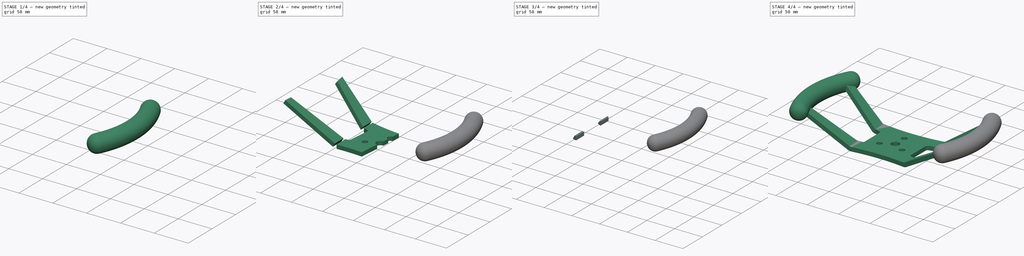
[diagram: build sequence overview — one tinted view per stage of 4, left to right]
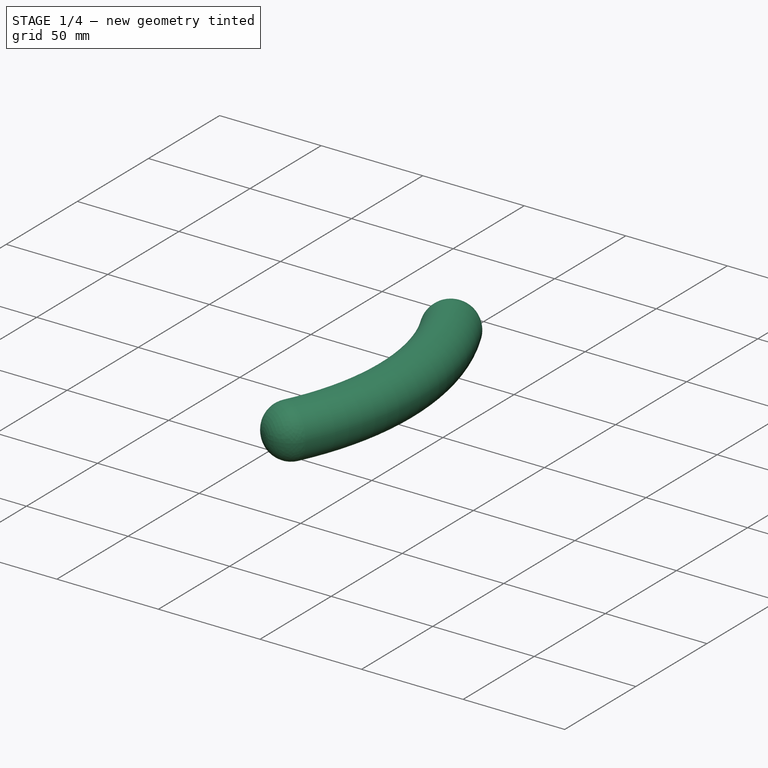
[diagram: stage 1 of 4 — iso view after this stage's code; geometry added in this stage tinted green]
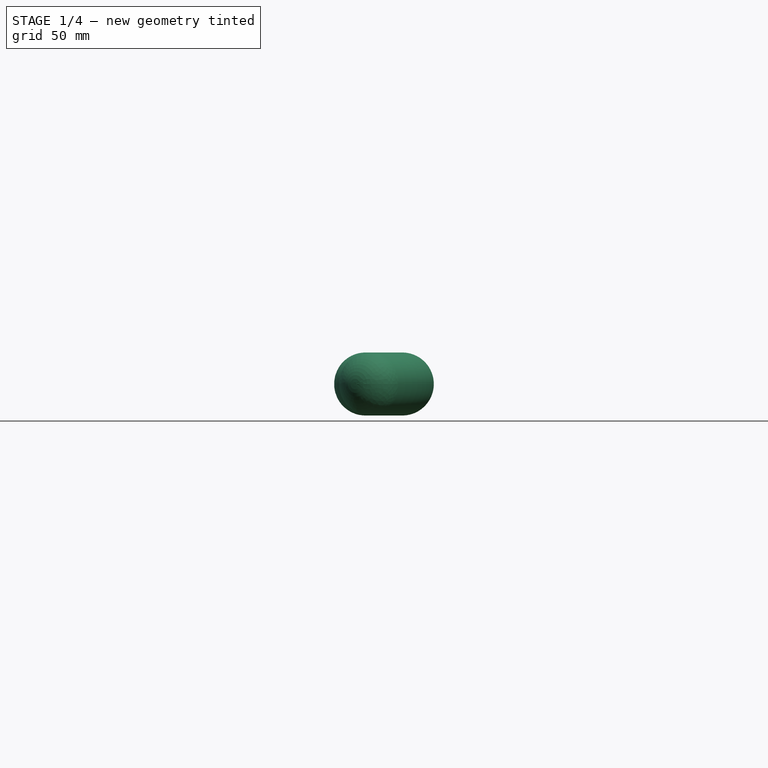
[diagram: stage 1 of 4 — front view after this stage's code; geometry added in this stage tinted green]
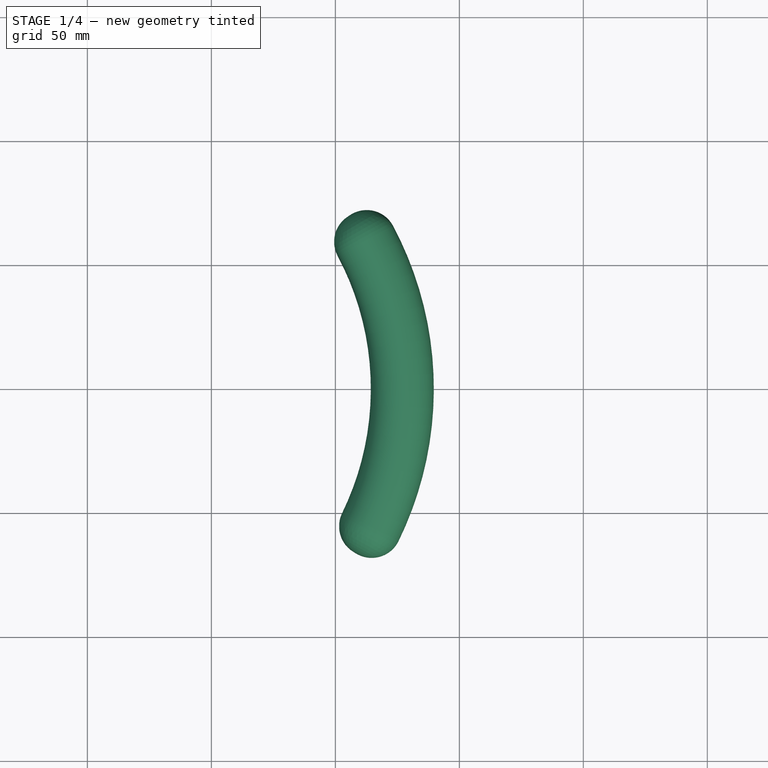
[diagram: stage 1 of 4 — top view after this stage's code; geometry added in this stage tinted green]
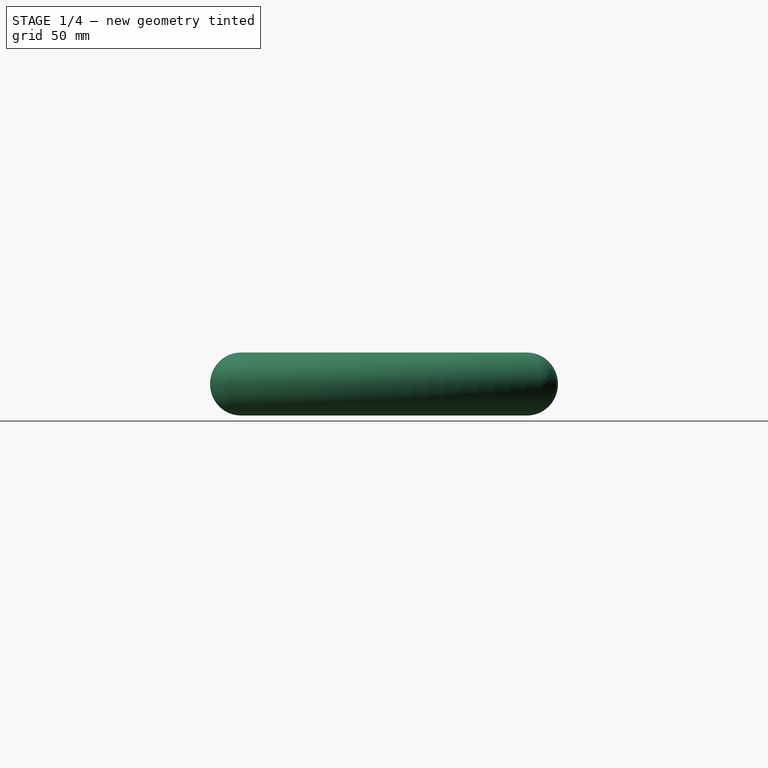
[diagram: stage 1 of 4 — right view after this stage's code; geometry added in this stage tinted green]
FCSTD DOCUMENT  (FreeCAD 0.18R16110 (Git))
Label: butterfly
License: All rights reserved
LicenseURL: http://en.wikipedia.org/wiki/All_rights_reserved
objects: Sketcher::SketchObject×8, Part::Extrusion×3, Part::Sweep×2, Part::MultiFuse×2, Part::Mirroring×2, Part::Torus×1, Part::Fillet×1
note: 19 computed .brp shape members not serialized (recipe doc carries the construction recipe); baked Part::Feature solids carry a one-line shape summary decoded from their .brp

FEATURE [Part::Torus] Torus
  Angle1 = -180
  Angle2 = 180
  Angle3 = 65
  AttacherType = Attacher::AttachEngine3D
  Placement = pos=(0,0,44.45) rot=(0,0,1;2.46964rad)
  Radius1 = 127
  Radius2 = 12.7
FEATURE [Part::Fillet] Fillet
  Base = -> Torus
  Edges = 2 edges r=12.065: [Edge2,Edge3]
  Placement = pos=(0,0,0) rot=(0,0,1;0.087266rad)
FEATURE [Part::Mirroring] Part__Mirroring001  label="Fillet (Mirror #2)"
  Base = (0,0,0)
  Normal = (1,0,0)
  Source = -> Fillet
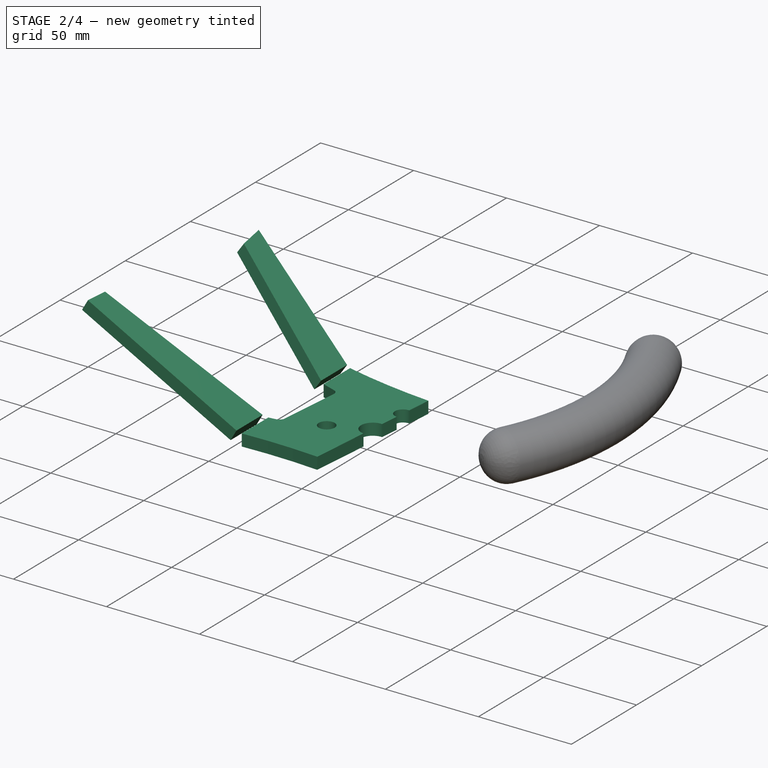
[diagram: stage 2 of 4 — iso view after this stage's code; geometry added in this stage tinted green]
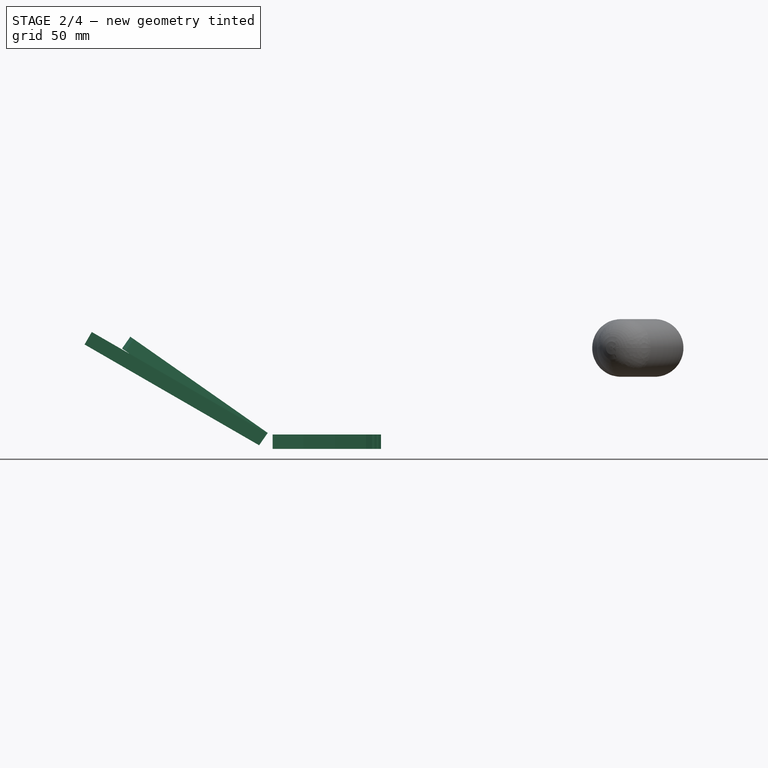
[diagram: stage 2 of 4 — front view after this stage's code; geometry added in this stage tinted green]
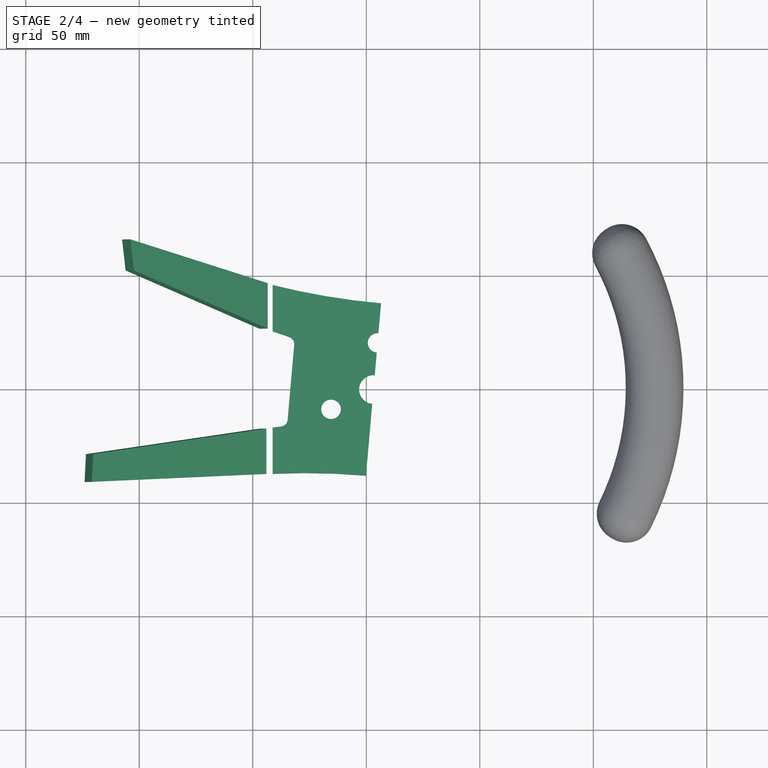
[diagram: stage 2 of 4 — top view after this stage's code; geometry added in this stage tinted green]
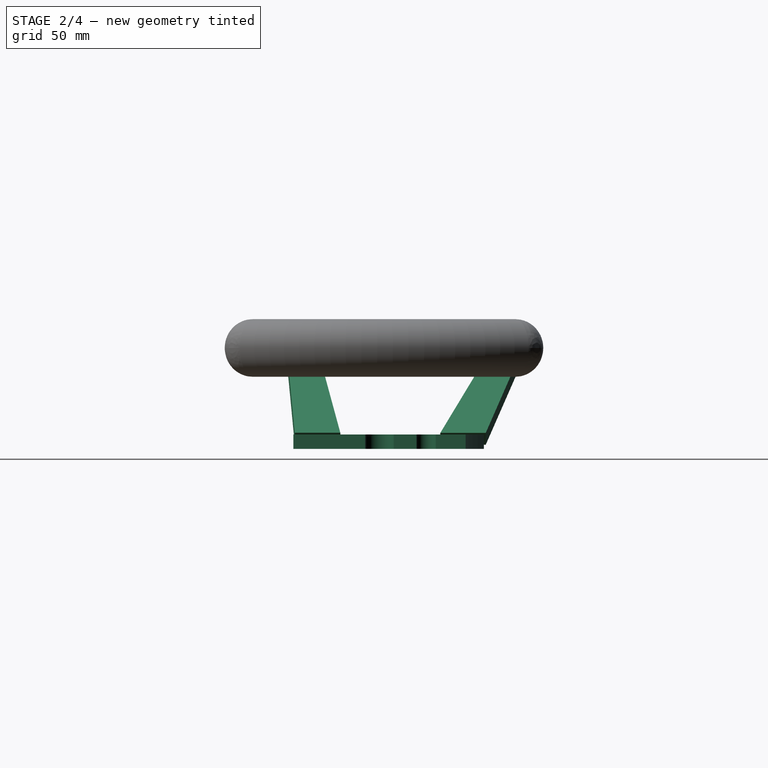
[diagram: stage 2 of 4 — right view after this stage's code; geometry added in this stage tinted green]
FEATURE [Sketcher::SketchObject] Sketch  label="Center"
  Placement = pos=(3.175,0,0) rot=(0,0,1;0rad)
  sketch-geometry (26):
    g0: ArcOfCircle CenterX=0 CenterY=0 CenterZ=0 NormalX=0 NormalY=0 NormalZ=1 AngleXU=0 Radius=6.35 StartAngle=1.48353 EndAngle=4.62512
    g1: Circle [constr] CenterX=0 CenterY=0 CenterZ=0 NormalX=0 NormalY=0 NormalZ=1 AngleXU=0 Radius=20.6375
    g2: ArcOfCircle CenterX=1.79868 CenterY=20.559 CenterZ=0 NormalX=0 NormalY=0 NormalZ=1 AngleXU=0 Radius=4.318 StartAngle=1.48353 EndAngle=4.62512
    g3: Circle CenterX=-18.7039 CenterY=-8.72178 CenterZ=0 NormalX=0 NormalY=0 NormalZ=1 AngleXU=0 Radius=4.318
    g4: LineSegment [constr] StartX=1.79868 StartY=20.559 StartZ=0 EndX=-18.7039 EndY=-8.72178 EndZ=0
    g5: LineSegment [constr] StartX=1.79868 StartY=20.559 StartZ=0 EndX=16.9053 EndY=-11.8372 EndZ=0
    g6: LineSegment [constr] StartX=16.9053 StartY=-11.8372 StartZ=0 EndX=-18.7039 EndY=-8.72178 EndZ=0
    g7: ArcOfCircle CenterX=29.8857 CenterY=341.595 CenterZ=0 NormalX=0 NormalY=0 NormalZ=1 AngleXU=0 Radius=304.8 StartAngle=4.46602 EndAngle=4.62512
    g8: LineSegment StartX=-44.45 StartY=45.9987 StartZ=0 EndX=-44.45 EndY=25.6787 EndZ=0
    g9: Circle [constr] CenterX=0 CenterY=0 CenterZ=0 NormalX=0 NormalY=0 NormalZ=1 AngleXU=0 Radius=31.75
    g10: ArcOfCircle CenterX=-29.8857 CenterY=-341.595 CenterZ=0 NormalX=0 NormalY=0 NormalZ=1 AngleXU=0 Radius=304.8 StartAngle=1.48353 EndAngle=1.6186
    g11: LineSegment StartX=-44.45 StartY=25.6787 StartZ=0 EndX=-37.0482 EndY=23.1133 EndZ=0
    g12: LineSegment StartX=-44.45 StartY=-16.8233 StartZ=0 EndX=-40.5706 EndY=-16.2961 EndZ=0
    g13: LineSegment StartX=-34.925 StartY=19.8367 StartZ=0 EndX=-37.8352 EndY=-13.4268 EndZ=0
    g14: LineSegment StartX=-44.45 StartY=-16.8233 StartZ=0 EndX=-44.45 EndY=-37.1433 EndZ=0
    g15: ArcOfCircle CenterX=-40.9981 CenterY=-13.15 CenterZ=0 NormalX=0 NormalY=0 NormalZ=1 AngleXU=0 Radius=3.175 StartAngle=4.84746 EndAngle=6.19592
    g16: ArcOfCircle CenterX=-38.0879 CenterY=20.1134 CenterZ=0 NormalX=0 NormalY=0 NormalZ=1 AngleXU=0 Radius=3.175 StartAngle=6.19592 EndAngle=7.52035
    g17: LineSegment [constr] StartX=-44.45 StartY=45.9987 StartZ=0 EndX=-69.083 EndY=52.1934 EndZ=0
    g18: LineSegment [constr] StartX=-44.45 StartY=-37.1433 StartZ=0 EndX=-69.821 EndY=-38.357 EndZ=0
    g19: LineSegment [constr] StartX=3.32063 StartY=37.955 StartZ=0 EndX=28.624 EndY=35.7413 EndZ=0
    g20: LineSegment [constr] StartX=-3.32063 StartY=-37.955 StartZ=0 EndX=21.9827 EndY=-40.1688 EndZ=0
    g21: LineSegment StartX=1.42234 StartY=16.2574 StartZ=0 EndX=0.553439 EndY=6.32584 EndZ=0
    g22: LineSegment StartX=3.32063 StartY=37.955 StartZ=0 EndX=2.17502 EndY=24.8605 EndZ=0
    g23: LineSegment StartX=-0.553439 StartY=-6.32584 StartZ=0 EndX=-3.32063 EndY=-37.955 EndZ=0
    g24: LineSegment [constr] StartX=1.79868 StartY=20.559 StartZ=0 EndX=2.17502 EndY=24.8605 EndZ=0
    g25: LineSegment [constr] StartX=0.553439 StartY=6.32584 StartZ=0 EndX=0 EndY=0 EndZ=0
  constraints (71):
    c: Coincident(g0,g-1)
    c: Coincident(g1,g0)
    c: PointOnObject(g3,g1)
    c: Equal(g2,g3)
    c: Coincident(g4,g3)
    c: Coincident(g6,g3)
    c: Equal(g6,g4)
    c: Equal(g4,g5)
    c: Radius(g1) = 20.6375
    c: Radius(g2) = 4.318
    c: Coincident(g8,g7)
    c: Radius(g7) = 304.8
    c: Coincident(g9,g0)
    c: Radius(g9) = 31.75
    c: Coincident(g10,g14)
    c: Equal(g10,g7)
    c: Coincident(g8,g11)
    c: Coincident(g14,g12)
    c: Tangent(g8,g14)
    c: Tangent(g12,g15) = -1.5708
    c: Tangent(g13,g15) = 1.5708
    c: Tangent(g13,g16) = 1.5708
    c: Tangent(g11,g16) = 1.5708
    c: Radius(g16) = 3.175
    c: Equal(g16,g15)
    c: Distance(g8) = 20.32  'TopLegBaseWidth'
    c: Distance(g14) = 20.32  'BottomLegBaseWidth'
    c: Tangent(g17,g7) = 1.5708
    c: Angle(g17,g11) = -0.0872665
    c: Tangent(g18,g10) = -1.5708
    c: Equal(g17,g18)
    c: Distance(g17) = 25.4
    c: Angle(g18,g12) = 0.0872665
    c: DistanceX(g-2,g13) = -34.925
    c: Angle(g17,g8) = 1.81716  'TopLegMountAngle'
    c: Angle(g14,g18) = 1.6186  'BottomLegMountAngle'
    c: Distance(g7,g-1) = 45.9987  'TopLegY'
    c: Coincident(g23,g10)
    c: PointOnObject(g4,g1)
    c: Coincident(g5,g4)
    c: Coincident(g6,g5)
    c: PointOnObject(g5,g1)
    c: Vertical(g8)
    c: Tangent(g19,g7) = -1.5708
    c: Equal(g17,g19)
    c: Equal(g20,g17)
    c: Tangent(g20,g10) = 1.5708
    c: Distance(g0,g10) = 38.1
    c: Radius(g0) = 6.35
    c: Coincident(g22,g7)
    c: Coincident(g22,g2)
    c: Parallel(g21,g22)
    c: Coincident(g21,g0)
    c: Tangent(g21,g23)
    c: Coincident(g23,g0)
    c: Coincident(g21,g2)
    c: PointOnObject(g2,g23)
    c: Coincident(g24,g4)
    c: Coincident(g24,g2)
    c: Parallel(g24,g22)
    c: Angle(g22,g-2) = 0.0872665
    c: Coincident(g2,g4)
    c: Coincident(g25,g0)
    c: Coincident(g25,g0)
    c: Parallel(g25,g21)
    c: Distance(g19,g20) = 76.2
    c: Perpendicular(g23,g20)
    c: Perpendicular(g22,g19)
    c: Parallel(g13,g23)
    c: DistanceX(g-2,g7) = -44.45  'LegX'
    c: DistanceY(g-1,g10) = -37.1433  'BottomLegY'
FEATURE [Part::Extrusion] Extrude  label="Cen"
  Base = -> Sketch
  Dir = (0,0,1)
  DirMode = 2
  FaceMakerClass = Part::FaceMakerBullseye
  LengthFwd = 6.35
  LengthRev = 0
  Solid = true
  Symmetric = false
FEATURE [Sketcher::SketchObject] Sketch001  label="TopArm"
  expr: Constraints[1] = Center.Constraints.TopLegMountAngle
  expr: Constraints[0] = Center.Constraints.TopLegBaseWidth
  sketch-geometry (8):
    g0: LineSegment [constr] StartX=0 StartY=0 StartZ=0 EndX=0 EndY=-20.32 EndZ=0
    g1: LineSegment StartX=-3.175 StartY=0.79844 StartZ=0 EndX=-77.0741 EndY=19.3824 EndZ=0
    g2: LineSegment StartX=-3.175 StartY=-19.2196 StartZ=0 EndX=-75.1732 EndY=5.73437 EndZ=0
    g3: LineSegment StartX=-77.0741 StartY=19.3824 StartZ=0 EndX=-75.1732 EndY=5.73437 EndZ=0
    g4: LineSegment StartX=-3.175 StartY=0.79844 StartZ=0 EndX=-3.175 EndY=-19.2196 EndZ=0
    g5: LineSegment [constr] StartX=-3.175 StartY=0.79844 StartZ=0 EndX=0 EndY=0 EndZ=0
    g6: LineSegment [constr] StartX=-3.175 StartY=-19.2196 StartZ=0 EndX=0 EndY=-20.32 EndZ=0
    g7: LineSegment [constr] StartX=-3.175 StartY=0 StartZ=0 EndX=0 EndY=0 EndZ=0
  constraints (22):
    c: Distance(g0) = 20.32
    c: Angle(g1,g0) = 1.81716
    c: Angle(g2,g1) = 0.0872665
    c: Coincident(g3,g1)
    c: Coincident(g3,g2)
    c: Distance(g1) = 76.2
    c: Distance(g2) = 76.2
    c: Coincident(g0,g-1)
    c: Coincident(g4,g1)
    c: Coincident(g4,g2)
    c: Parallel(g4,g0)
    c: Coincident(g5,g1)
    c: Coincident(g5,g0)
    c: Parallel(g5,g1)
    c: Coincident(g6,g2)
    c: Coincident(g6,g0)
    c: Parallel(g6,g2)
    c: PointOnObject(g7,g4)
    c: Perpendicular(g0,g7)
    c: Distance(g7) = 3.175
    c: PointOnObject(g0,g-2)
    c: Coincident(g7,g-1)
FEATURE [Part::Extrusion] Extrude001  label="TArm"
  Base = -> Sketch001
  Dir = (0,0,1)
  DirMode = 2
  FaceMakerClass = Part::FaceMakerBullseye
  LengthFwd = 6.35
  LengthRev = 0
  Placement = pos=(-44.45,45.9987,0) rot=(0,1,0;0.610865rad)
  Solid = true
  Symmetric = false
  expr: Placement.Base.y = Center.Constraints.TopLegY
  expr: Placement.Base.x = Center.Constraints.LegX
FEATURE [Sketcher::SketchObject] Sketch005  label="BottomArm"
  expr: Constraints[21] = Center.Constraints.BottomLegBaseWidth
  expr: Constraints[17] = Center.Constraints.BottomLegMountAngle
  sketch-geometry (8):
    g0: LineSegment [constr] StartX=0 StartY=20.32 StartZ=0 EndX=0 EndY=0 EndZ=0
    g1: LineSegment StartX=-3.175 StartY=19.8885 StartZ=0 EndX=-91.2653 EndY=7.91748 EndZ=0
    g2: LineSegment StartX=-3.175 StartY=-0.151885 StartZ=0 EndX=-91.9735 EndY=-4.3998 EndZ=0
    g3: LineSegment StartX=-91.2653 StartY=7.91748 StartZ=0 EndX=-91.9735 EndY=-4.3998 EndZ=0
    g4: LineSegment StartX=-3.175 StartY=19.8885 StartZ=0 EndX=-3.175 EndY=-0.151885 EndZ=0
    g5: LineSegment [constr] StartX=-3.175 StartY=19.8885 StartZ=0 EndX=0 EndY=20.32 EndZ=0
    g6: LineSegment [constr] StartX=-3.175 StartY=-0.151885 StartZ=0 EndX=0 EndY=0 EndZ=0
    g7: LineSegment [constr] StartX=-3.175 StartY=0 StartZ=0 EndX=0 EndY=0 EndZ=0
  constraints (22):
    c: Angle(g2,g1) = 0.0872665
    c: Coincident(g3,g1)
    c: Coincident(g3,g2)
    c: Distance(g1) = 88.9
    c: Distance(g2) = 88.9
    c: Coincident(g4,g1)
    c: Coincident(g4,g2)
    c: Parallel(g4,g0)
    c: Coincident(g5,g1)
    c: Coincident(g5,g0)
    c: Parallel(g5,g1)
    c: Coincident(g6,g2)
    c: Coincident(g6,g0)
    c: Parallel(g6,g2)
    c: PointOnObject(g7,g4)
    c: Perpendicular(g0,g7)
    c: Distance(g7) = 3.175
    c: Angle(g-2,g2) = 1.6186
    c: PointOnObject(g0,g-2)
    c: Coincident(g0,g-1)
    c: Coincident(g7,g-1)
    c: Distance(g0) = 20.32
FEATURE [Part::Extrusion] Extrude002  label="BArm"
  Base = -> Sketch005
  Dir = (0,0,1)
  DirMode = 2
  FaceMakerClass = Part::FaceMakerBullseye
  LengthFwd = 6.35
  LengthRev = 0
  Placement = pos=(-44.45,-37.1433,0) rot=(0,1,0;0.523599rad)
  Solid = true
  Symmetric = false
  expr: Placement.Base.y = Center.Constraints.BottomLegY
  expr: Placement.Base.x = Sketch.Constraints.LegX
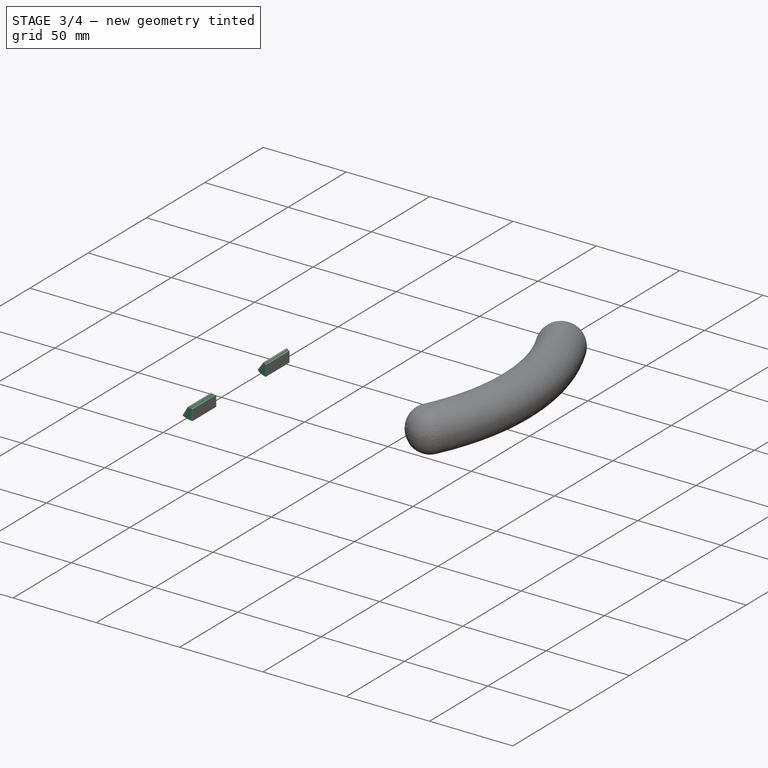
[diagram: stage 3 of 4 — iso view after this stage's code; geometry added in this stage tinted green]
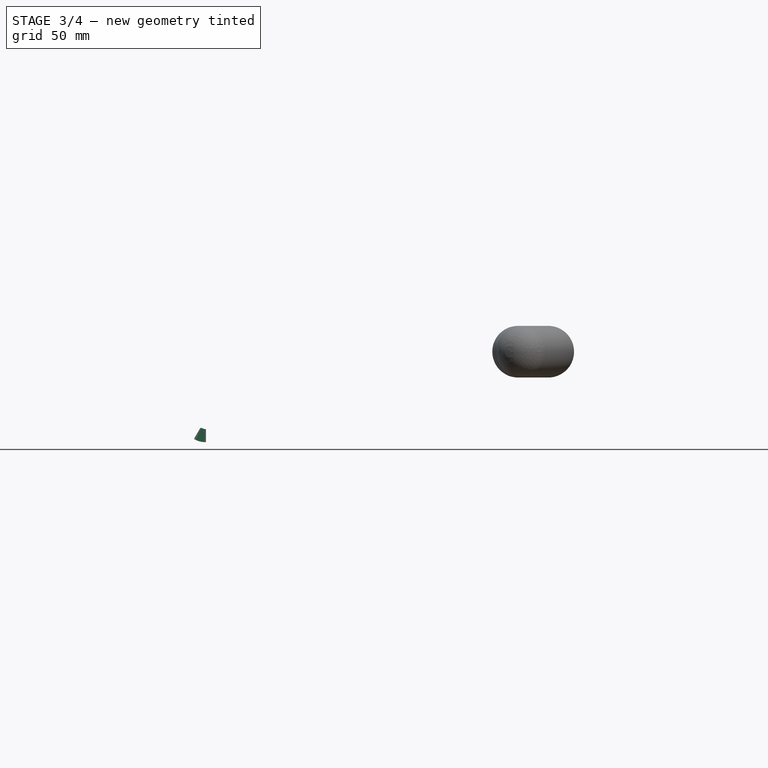
[diagram: stage 3 of 4 — front view after this stage's code; geometry added in this stage tinted green]
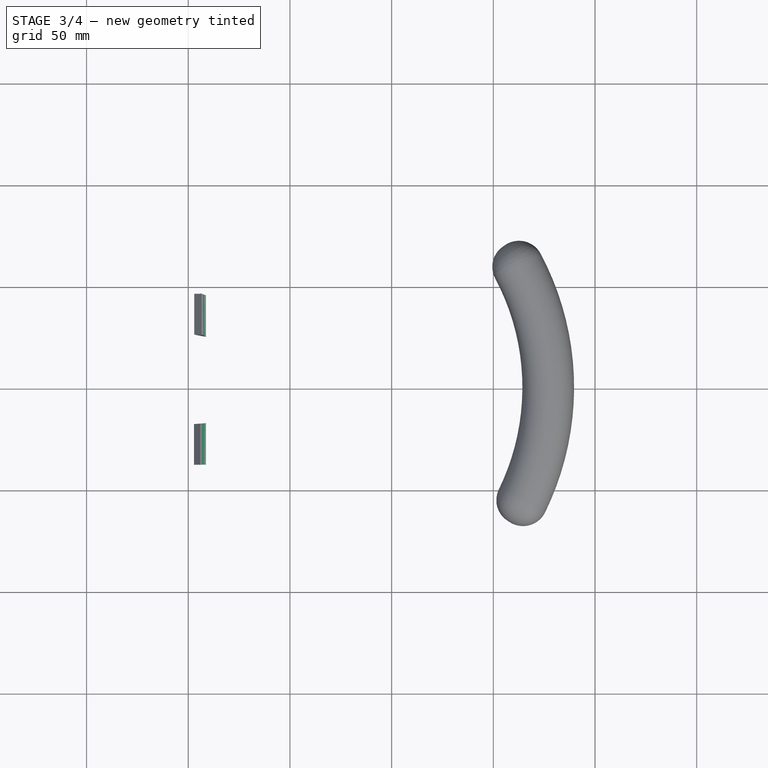
[diagram: stage 3 of 4 — top view after this stage's code; geometry added in this stage tinted green]
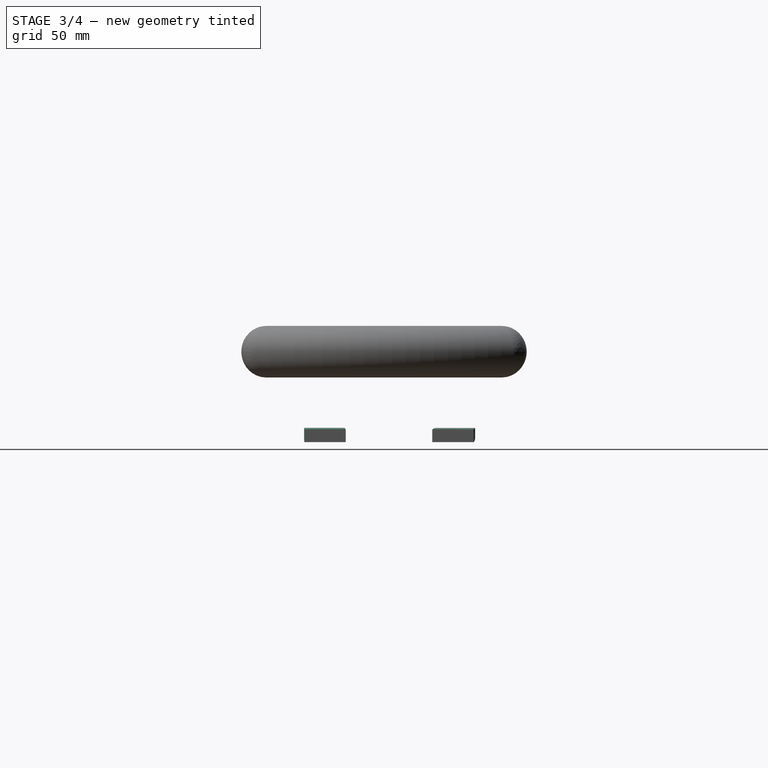
[diagram: stage 3 of 4 — right view after this stage's code; geometry added in this stage tinted green]
FEATURE [Sketcher::SketchObject] Sketch002  label="TopArmBase"
  ExternalGeometry = -> [Extrude]
  MapMode = 5
  Placement = pos=(-41.275,0,0) rot=(0.57735,-0.57735,-0.57735;2.0944rad)
  Support = -> [Extrude]
  sketch-geometry (4):
    g0: LineSegment StartX=-25.6787 StartY=6.35 StartZ=0 EndX=-45.9987 EndY=6.35 EndZ=0
    g1: LineSegment StartX=-45.9987 StartY=6.35 StartZ=0 EndX=-45.9987 EndY=0 EndZ=0
    g2: LineSegment StartX=-45.9987 StartY=0 StartZ=0 EndX=-25.6787 EndY=0 EndZ=0
    g3: LineSegment StartX=-25.6787 StartY=0 StartZ=0 EndX=-25.6787 EndY=6.35 EndZ=0
  constraints (10):
    c: Coincident(g0,g1)
    c: Coincident(g1,g2)
    c: Coincident(g2,g3)
    c: Coincident(g3,g0)
    c: Horizontal(g0)
    c: Horizontal(g2)
    c: Vertical(g1)
    c: Vertical(g3)
    c: Coincident(g0,g-3)
    c: Coincident(g1,g-4)
FEATURE [Sketcher::SketchObject] Sketch003  label="TopArmFace"
  ExternalGeometry = -> [Extrude001]
  MapMode = 5
  Placement = pos=(-47.0508,45.9987,1.82111) rot=(0.663579,0.663579,0.345437;2.47638rad)
  Support = -> [Extrude001]
  sketch-geometry (4):
    g0: LineSegment StartX=-19.2196 StartY=0 StartZ=0 EndX=0.79844 EndY=0 EndZ=0
    g1: LineSegment StartX=0.79844 StartY=0 StartZ=0 EndX=0.79844 EndY=6.35 EndZ=0
    g2: LineSegment StartX=0.79844 StartY=6.35 StartZ=0 EndX=-19.2196 EndY=6.35 EndZ=0
    g3: LineSegment StartX=-19.2196 StartY=6.35 StartZ=0 EndX=-19.2196 EndY=0 EndZ=0
  constraints (10):
    c: Coincident(g0,g1)
    c: Coincident(g1,g2)
    c: Coincident(g2,g3)
    c: Coincident(g3,g0)
    c: Horizontal(g0)
    c: Horizontal(g2)
    c: Vertical(g1)
    c: Vertical(g3)
    c: Coincident(g0,g-4)
    c: Coincident(g1,g-3)
FEATURE [Sketcher::SketchObject] Sketch004  label="SweepPath"
  ExternalGeometry = -> [Extrude,Extrude001]
  Placement = pos=(0,0,0) rot=(-1,0,0;4.71239rad)
  sketch-geometry (2):
    g0: ArcOfCircle CenterX=-41.275 CenterY=10.0698 CenterZ=0 NormalX=0 NormalY=0 NormalZ=1 AngleXU=0 Radius=10.0698 StartAngle=4.10152 EndAngle=4.71239
    g1: LineSegment [constr] StartX=-47.0508 StartY=1.82111 StartZ=0 EndX=-41.275 EndY=10.0698 EndZ=0
  constraints (5):
    c: Coincident(g0,g-4)
    c: Coincident(g0,g-3)
    c: Coincident(g1,g0)
    c: Coincident(g1,g0)
    c: PointOnObject(g-4,g1)
FEATURE [Part::Sweep] Sweep  label="TopBend"
  Frenet = false
  Sections = -> [Sketch002,Sketch003]
  Solid = true
  Spine = -> Sketch004
  Transition = 1
FEATURE [Sketcher::SketchObject] Sketch006  label="BottomArmBase"
  ExternalGeometry = -> [Extrude]
  MapMode = 5
  Placement = pos=(-41.275,-2.89e-14,0) rot=(0.57735,-0.57735,-0.57735;2.0944rad)
  Support = -> [Extrude]
  sketch-geometry (4):
    g0: LineSegment StartX=16.8233 StartY=6.35 StartZ=0 EndX=37.1433 EndY=6.35 EndZ=0
    g1: LineSegment StartX=37.1433 StartY=6.35 StartZ=0 EndX=37.1433 EndY=0 EndZ=0
    g2: LineSegment StartX=37.1433 StartY=0 StartZ=0 EndX=16.8233 EndY=0 EndZ=0
    g3: LineSegment StartX=16.8233 StartY=0 StartZ=0 EndX=16.8233 EndY=6.35 EndZ=0
  constraints (10):
    c: Coincident(g0,g1)
    c: Coincident(g1,g2)
    c: Coincident(g2,g3)
    c: Coincident(g3,g0)
    c: Horizontal(g0)
    c: Horizontal(g2)
    c: Vertical(g1)
    c: Vertical(g3)
    c: Coincident(g0,g-3)
    c: Coincident(g1,g-4)
FEATURE [Sketcher::SketchObject] Sketch007  label="BottomArmFace"
  ExternalGeometry = -> [Extrude002]
  MapMode = 5
  Placement = pos=(-47.1996,-37.1433,1.5875) rot=(0.654654,0.654654,0.377964;2.41886rad)
  Support = -> [Extrude002]
  sketch-geometry (4):
    g0: LineSegment StartX=-0.151885 StartY=6.35 StartZ=0 EndX=19.8885 EndY=6.35 EndZ=0
    g1: LineSegment StartX=19.8885 StartY=6.35 StartZ=0 EndX=19.8885 EndY=-7.1e-15 EndZ=0
    g2: LineSegment StartX=19.8885 StartY=-7.1e-15 StartZ=0 EndX=-0.151885 EndY=-7.1e-15 EndZ=0
    g3: LineSegment StartX=-0.151885 StartY=-7.1e-15 StartZ=0 EndX=-0.151885 EndY=6.35 EndZ=0
  constraints (10):
    c: Coincident(g0,g1)
    c: Coincident(g1,g2)
    c: Coincident(g2,g3)
    c: Coincident(g3,g0)
    c: Horizontal(g0)
    c: Horizontal(g2)
    c: Vertical(g1)
    c: Vertical(g3)
    c: Coincident(g0,g-3)
    c: Coincident(g1,g-4)
FEATURE [Part::Sweep] Sweep001  label="BottomBend"
  Frenet = false
  Sections = -> [Sketch007,Sketch006]
  Solid = true
  Spine = -> Sketch004
  Transition = 1
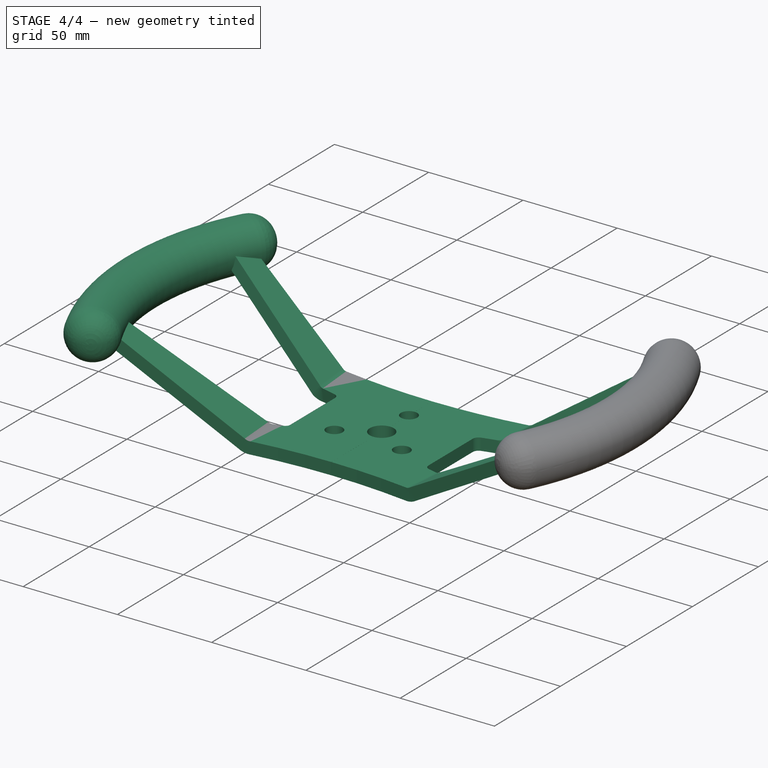
[diagram: stage 4 of 4 — iso view after this stage's code; geometry added in this stage tinted green]
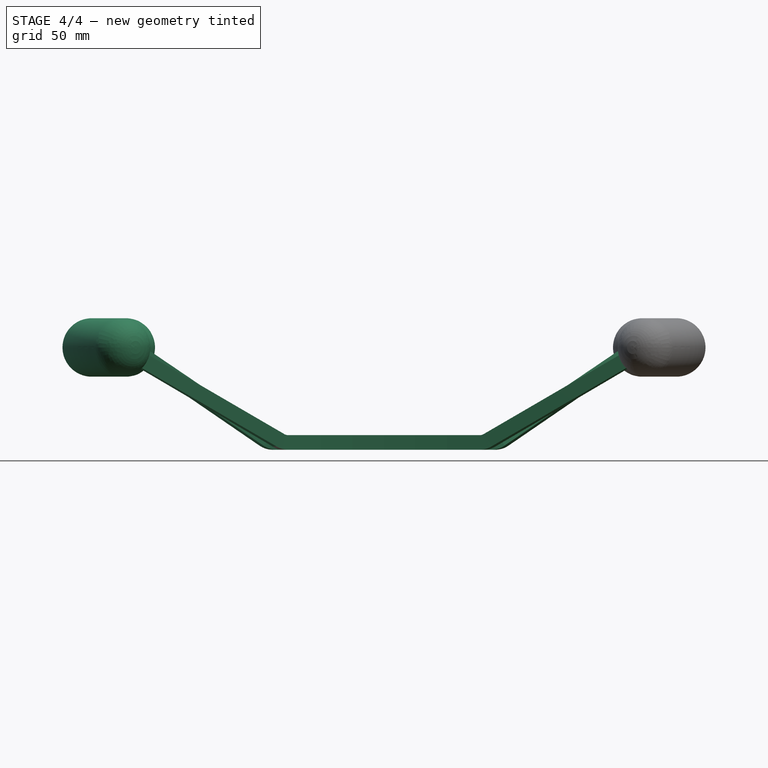
[diagram: stage 4 of 4 — front view after this stage's code; geometry added in this stage tinted green]
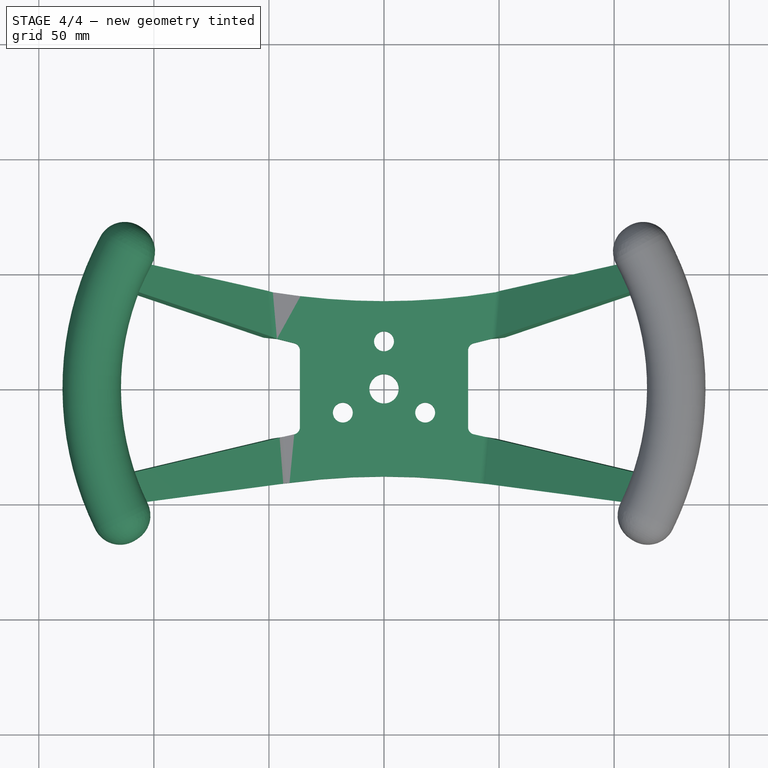
[diagram: stage 4 of 4 — top view after this stage's code; geometry added in this stage tinted green]
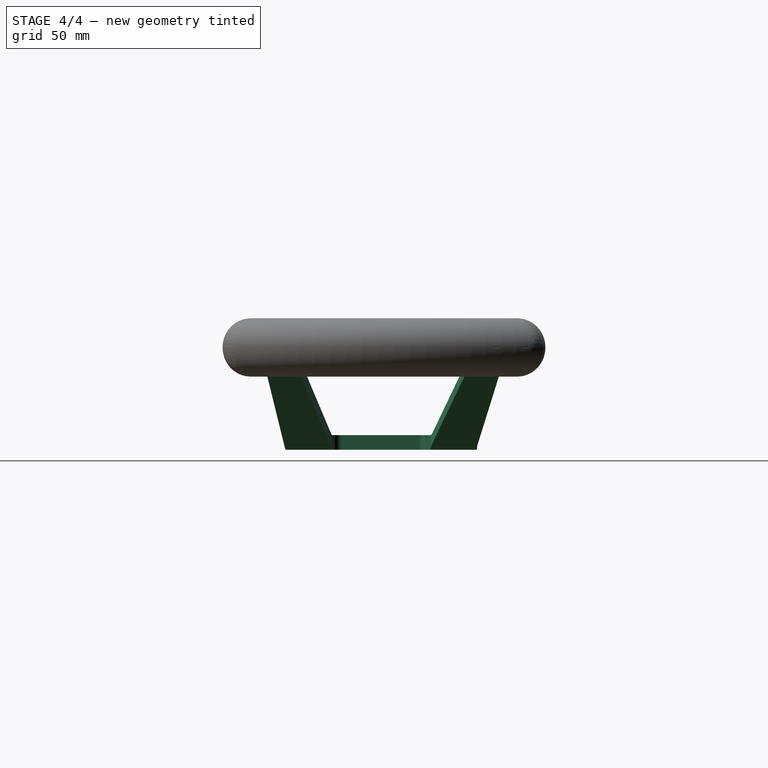
[diagram: stage 4 of 4 — right view after this stage's code; geometry added in this stage tinted green]
FEATURE [Part::MultiFuse] Fusion
  Placement = pos=(-3.175,0,0) rot=(0,0,1;0.087266rad)
  Shapes = -> [Extrude,Extrude001,Sweep,Extrude002,Sweep001]
FEATURE [Part::Mirroring] Part__Mirroring  label="Fusion (Mirror #1)"
  Base = (0,0,0)
  Normal = (1,0,0)
  Source = -> Fusion
FEATURE [Part::MultiFuse] Fusion001
  Shapes = -> [Part__Mirroring001,Fillet,Fusion,Part__Mirroring]
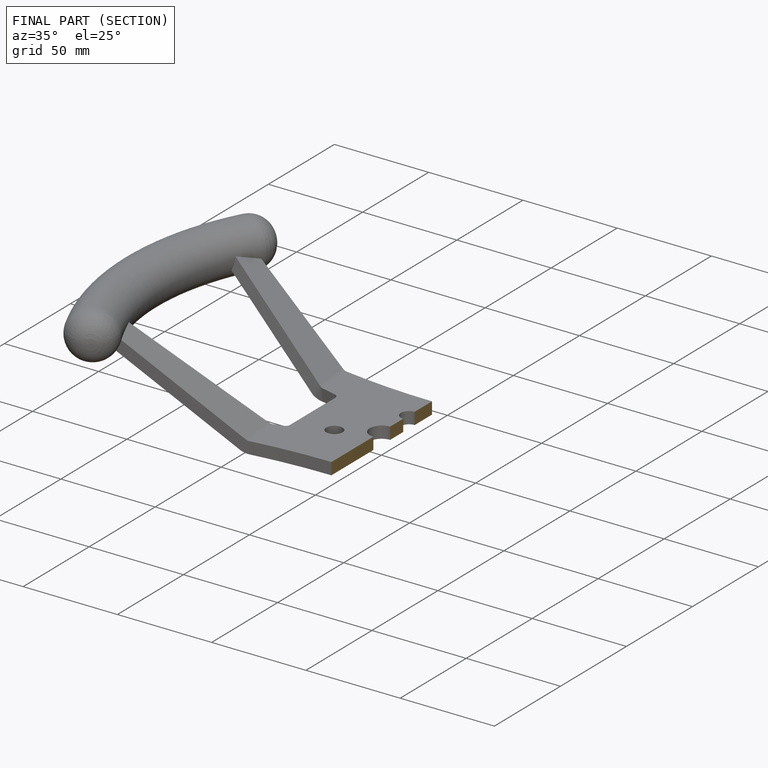
[diagram: finished part — half-section view (interior)]
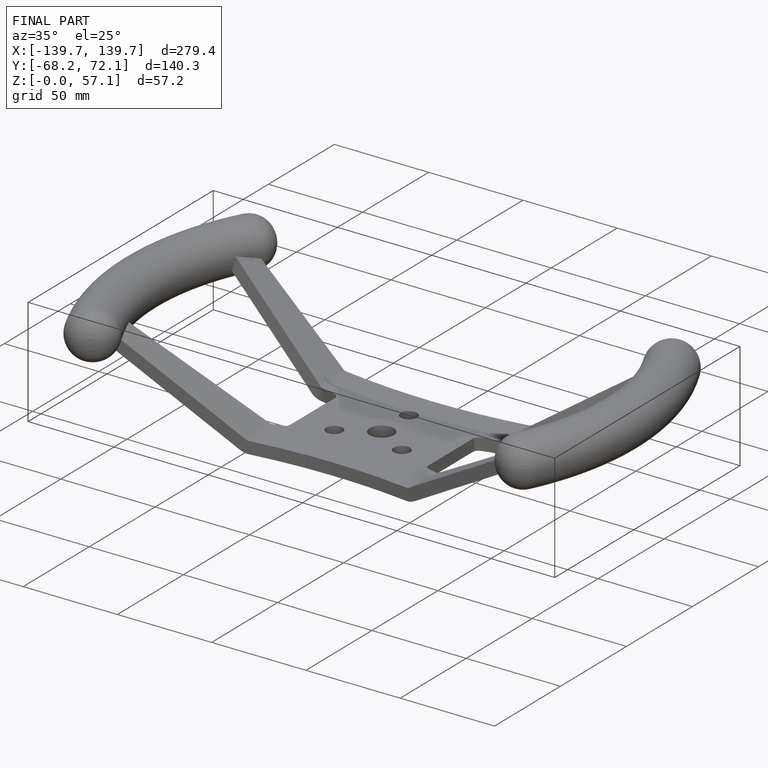
[diagram: finished part — iso view with bounding-box wireframe]
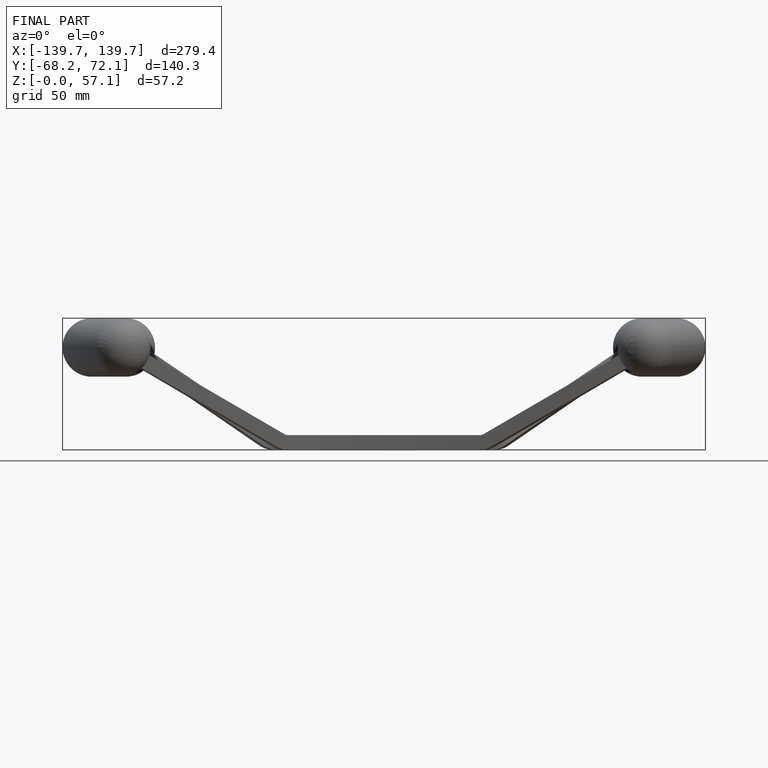
[diagram: finished part — front view with bounding-box wireframe]
